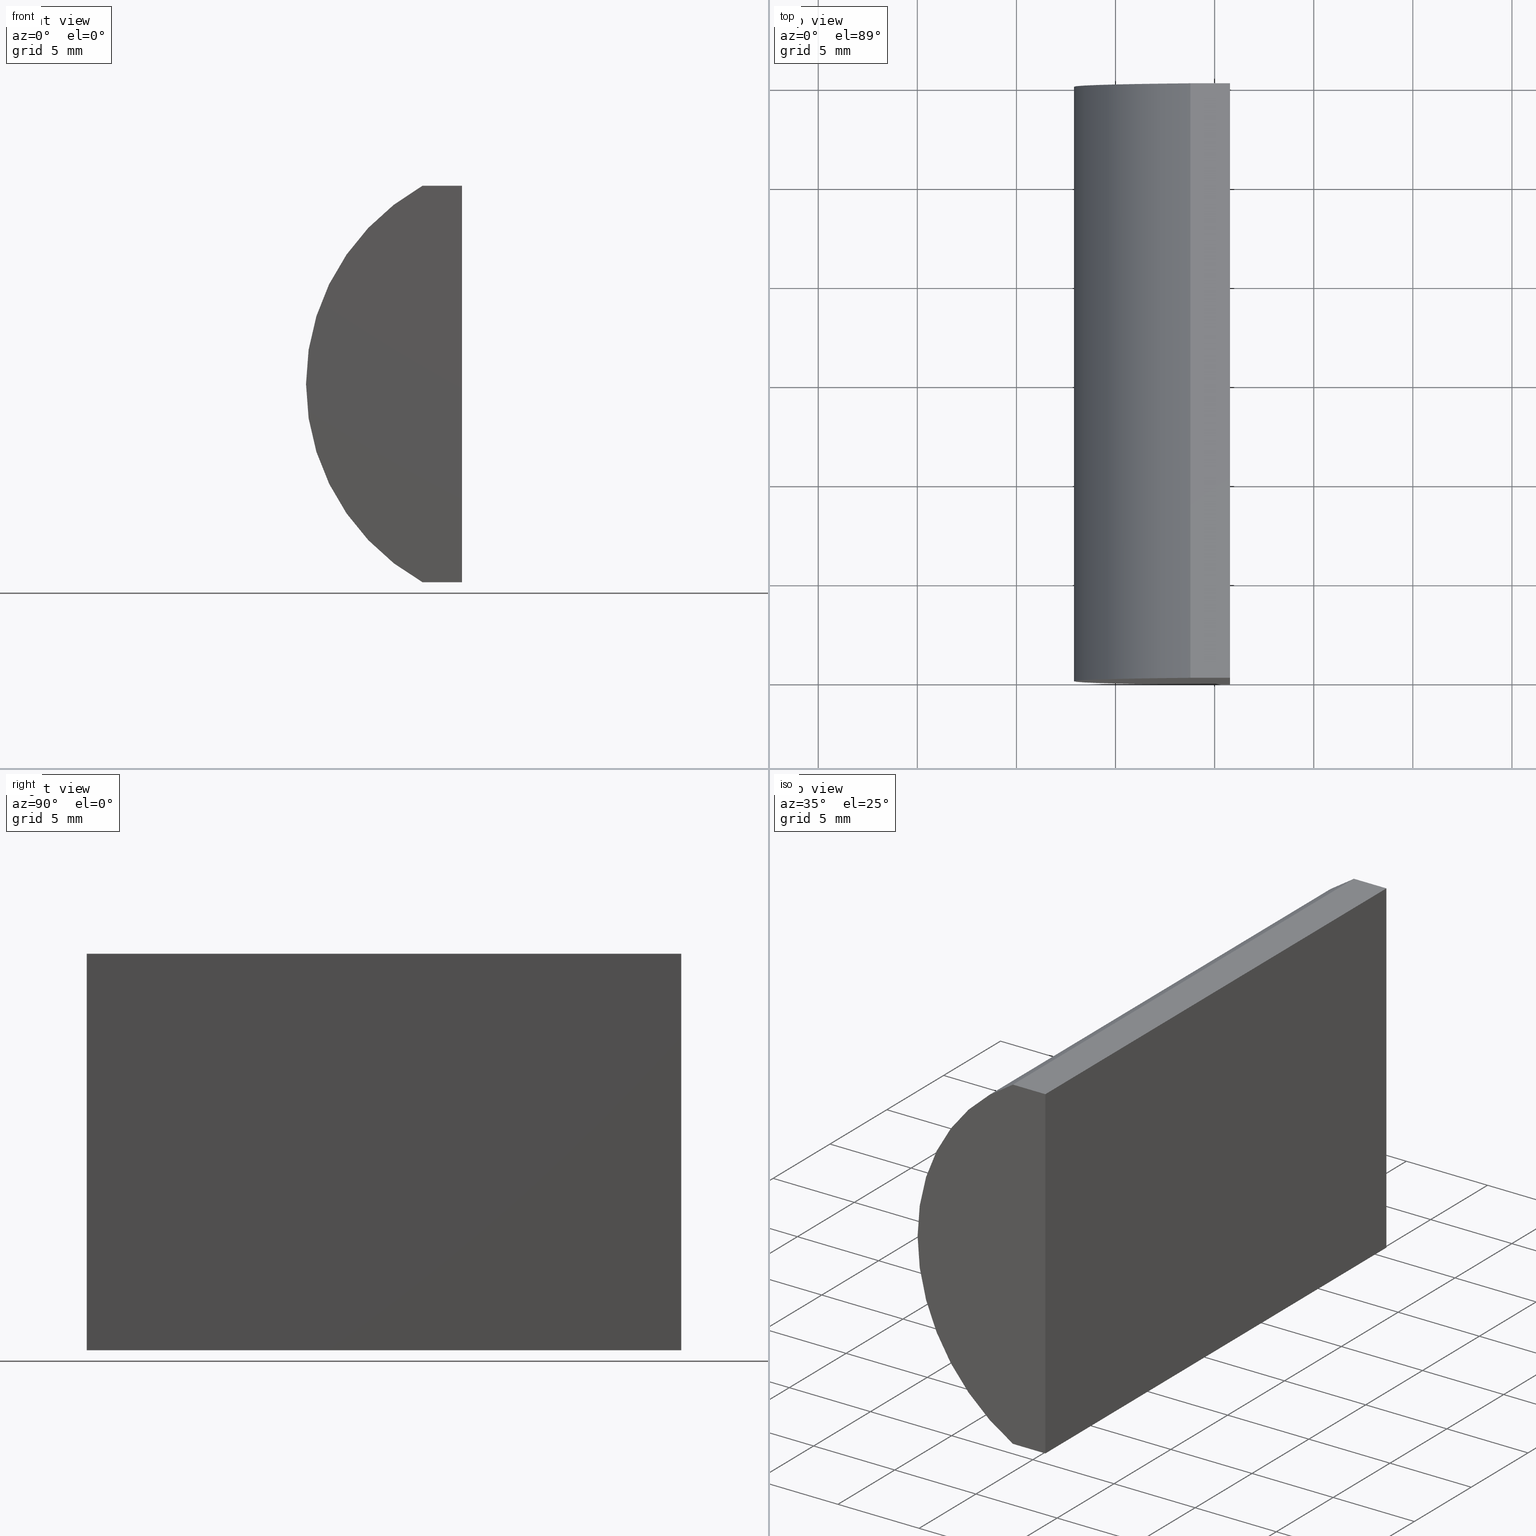
[diagram: canonical four-view strip — front | top / right | iso, engineering-drawing reading convention]
A machine part, canonical four-view strip (front | top / right | iso — engineering-drawing reading convention). The complete STEP part file that produces these views, byte-faithful:
ISO-10303-21;
HEADER;
FILE_DESCRIPTION (( 'STEP AP214' ),
    '1' );
FILE_NAME ('155294.STEP',
    '2019-06-26T06:16:35',
    ( 'user' ),
    ( '΢���й�' ),
    'SwSTEP 2.0',
    'SolidWorks 2016',
    '' );
FILE_SCHEMA (( 'AUTOMOTIVE_DESIGN' ));
ENDSEC;

DATA;
#1 = EDGE_CURVE ( 'NONE', #183, #32, #134, .T. ) ;
#2 = PLANE ( 'NONE',  #62 ) ;
#3 = ORIENTED_EDGE ( 'NONE', *, *, #173, .F. ) ;
#4 = EDGE_CURVE ( 'NONE', #175, #183, #56, .T. ) ;
#5 = VECTOR ( 'NONE', #172, 1000.000000000000000 ) ;
#6 = CARTESIAN_POINT ( 'NONE',  ( -1.221757203477694200, 0.0000000000000000000, 10.00000000000000000 ) ) ;
#7 = APPLICATION_CONTEXT ( 'automotive_design' ) ;
#8 =( NAMED_UNIT ( * ) SI_UNIT ( $, .STERADIAN. ) SOLID_ANGLE_UNIT ( ) );
#9 = FILL_AREA_STYLE ('',( #81 ) ) ;
#10 = ORIENTED_EDGE ( 'NONE', *, *, #80, .F. ) ;
#11 = ORIENTED_EDGE ( 'NONE', *, *, #1, .F. ) ;
#12 = ORIENTED_EDGE ( 'NONE', *, *, #4, .F. ) ;
#13 = APPLICATION_CONTEXT ( 'automotive_design' ) ;
#14 = EDGE_LOOP ( 'NONE', ( #77, #166, #65, #201 ) ) ;
#15 = ORIENTED_EDGE ( 'NONE', *, *, #1, .T. ) ;
#16 = FACE_OUTER_BOUND ( 'NONE', #184, .T. ) ;
#17 = ADVANCED_FACE ( 'NONE', ( #16 ), #193, .F. ) ;
#18 = DIRECTION ( 'NONE',  ( 0.0000000000000000000, 1.000000000000000000, 0.0000000000000000000 ) ) ;
#19 = COLOUR_RGB ( '',1.000000000000000000, 1.000000000000000000, 1.000000000000000000 ) ;
#20 = UNCERTAINTY_MEASURE_WITH_UNIT (LENGTH_MEASURE( 1.000000000000000100E-005 ), #83, 'distance_accuracy_value', 'NONE');
#21 =( GEOMETRIC_REPRESENTATION_CONTEXT ( 3 ) GLOBAL_UNCERTAINTY_ASSIGNED_CONTEXT ( ( #20 ) ) GLOBAL_UNIT_ASSIGNED_CONTEXT ( ( #83, #132, #69 ) ) REPRESENTATION_CONTEXT ( 'NONE', 'WORKASPACE' ) );
#22 = CARTESIAN_POINT ( 'NONE',  ( 0.7752043348512593900, 0.0000000000000000000, -10.00000000000000400 ) ) ;
#23 = CARTESIAN_POINT ( 'NONE',  ( -1.221757203477694200, 30.00000000000000000, 10.00000000000000000 ) ) ;
#24 = ORIENTED_EDGE ( 'NONE', *, *, #80, .T. ) ;
#25 = ORIENTED_EDGE ( 'NONE', *, *, #173, .T. ) ;
#26 = LINE ( 'NONE', #59, #34 ) ;
#27 = PLANE ( 'NONE',  #100 ) ;
#28 = DIRECTION ( 'NONE',  ( 0.0000000000000000000, 0.0000000000000000000, -1.000000000000000000 ) ) ;
#29 = EDGE_LOOP ( 'NONE', ( #73, #11, #12, #131 ) ) ;
#30 = DIRECTION ( 'NONE',  ( 0.0000000000000000000, 0.0000000000000000000, 1.000000000000000000 ) ) ;
#31 = PRODUCT_RELATED_PRODUCT_CATEGORY ( 'part', '', ( #186 ) ) ;
#32 = VERTEX_POINT ( 'NONE', #6 ) ;
#33 = CLOSED_SHELL ( 'NONE', ( #102, #128, #60, #17, #107, #192 ) ) ;
#34 = VECTOR ( 'NONE', #111, 1000.000000000000000 ) ;
#35 = EDGE_CURVE ( 'NONE', #32, #149, #104, .T. ) ;
#36 = MANIFOLD_SOLID_BREP ( '͹̨-����1', #33 ) ;
#37 = DIRECTION ( 'NONE',  ( 0.0000000000000000000, 1.000000000000000000, 0.0000000000000000000 ) ) ;
#38 = SURFACE_STYLE_USAGE ( .BOTH. , #180 ) ;
#39 = ORIENTED_EDGE ( 'NONE', *, *, #74, .T. ) ;
#40 = VERTEX_POINT ( 'NONE', #22 ) ;
#41 = DIRECTION ( 'NONE',  ( -0.0000000000000000000, -1.000000000000000000, -0.0000000000000000000 ) ) ;
#42 = CARTESIAN_POINT ( 'NONE',  ( -1.221757203477650000, 30.00000000000000000, -10.00000000000000000 ) ) ;
#43 = PRODUCT_DEFINITION_SHAPE ( 'NONE', 'NONE',  #135 ) ;
#44 = MECHANICAL_DESIGN_GEOMETRIC_PRESENTATION_REPRESENTATION (  '', ( #174 ), #159 ) ;
#45 = ORIENTED_EDGE ( 'NONE', *, *, #187, .T. ) ;
#46 = DIRECTION ( 'NONE',  ( 0.0000000000000000000, 1.000000000000000000, 0.0000000000000000000 ) ) ;
#47 = CARTESIAN_POINT ( 'NONE',  ( 0.7752043348512593900, 0.0000000000000000000, -10.00000000000000400 ) ) ;
#48 = EDGE_CURVE ( 'NONE', #175, #119, #88, .T. ) ;
#49 = CARTESIAN_POINT ( 'NONE',  ( -1.221757203477650000, 30.00000000000000000, -10.00000000000000000 ) ) ;
#50 = CYLINDRICAL_SURFACE ( 'NONE', #114, 11.45000000000001200 ) ;
#51 = ORIENTED_EDGE ( 'NONE', *, *, #74, .F. ) ;
#52 = AXIS2_PLACEMENT_3D ( 'NONE', #105, #110, #90 ) ;
#53 = LINE ( 'NONE', #169, #160 ) ;
#54 = VECTOR ( 'NONE', #93, 1000.000000000000000 ) ;
#55 = STYLED_ITEM ( 'NONE', ( #130 ), #121 ) ;
#56 = CIRCLE ( 'NONE', #97, 11.45000000000001200 ) ;
#57 = CARTESIAN_POINT ( 'NONE',  ( 0.7752043348512593900, 30.00000000000000000, -10.00000000000000400 ) ) ;
#58 = PRODUCT_DEFINITION_FORMATION_WITH_SPECIFIED_SOURCE ( '�κ�', '', #186, .NOT_KNOWN. ) ;
#59 = CARTESIAN_POINT ( 'NONE',  ( -1.221757203477694200, 30.00000000000000000, 10.00000000000000000 ) ) ;
#60 = ADVANCED_FACE ( 'NONE', ( #117 ), #27, .F. ) ;
#61 = CARTESIAN_POINT ( 'NONE',  ( 0.7752043348512655000, 30.00000000000000000, 10.00000000000000000 ) ) ;
#62 = AXIS2_PLACEMENT_3D ( 'NONE', #158, #28, #154 ) ;
#63 = ORIENTED_EDGE ( 'NONE', *, *, #202, .F. ) ;
#64 = DIRECTION ( 'NONE',  ( 3.035766082959411900E-016, 0.0000000000000000000, 1.000000000000000000 ) ) ;
#65 = ORIENTED_EDGE ( 'NONE', *, *, #187, .F. ) ;
#66 = LINE ( 'NONE', #57, #142 ) ;
#67 = MECHANICAL_DESIGN_GEOMETRIC_PRESENTATION_REPRESENTATION (  '', ( #55 ), #182 ) ;
#68 = VERTEX_POINT ( 'NONE', #124 ) ;
#69 =( NAMED_UNIT ( * ) SI_UNIT ( $, .STERADIAN. ) SOLID_ANGLE_UNIT ( ) );
#70 = ORIENTED_EDGE ( 'NONE', *, *, #113, .T. ) ;
#71 = CARTESIAN_POINT ( 'NONE',  ( 0.7752043348512593900, 30.00000000000000000, -10.00000000000000400 ) ) ;
#72 = CARTESIAN_POINT ( 'NONE',  ( 4.355204334851265500, 30.00000000000000000, 4.286263797015675000E-017 ) ) ;
#73 = ORIENTED_EDGE ( 'NONE', *, *, #152, .T. ) ;
#74 = EDGE_CURVE ( 'NONE', #183, #68, #26, .T. ) ;
#75 = DIRECTION ( 'NONE',  ( -0.0000000000000000000, -1.000000000000000000, -0.0000000000000000000 ) ) ;
#76 = EDGE_LOOP ( 'NONE', ( #45, #153, #3, #24 ) ) ;
#77 = ORIENTED_EDGE ( 'NONE', *, *, #152, .F. ) ;
#78 =( NAMED_UNIT ( * ) PLANE_ANGLE_UNIT ( ) SI_UNIT ( $, .RADIAN. ) );
#79 = VECTOR ( 'NONE', #96, 1000.000000000000000 ) ;
#80 = EDGE_CURVE ( 'NONE', #68, #149, #162, .T. ) ;
#81 = FILL_AREA_STYLE_COLOUR ( '', #19 ) ;
#82 = CARTESIAN_POINT ( 'NONE',  ( 0.7752043348512593900, 30.00000000000000000, -10.00000000000000400 ) ) ;
#83 =( LENGTH_UNIT ( ) NAMED_UNIT ( * ) SI_UNIT ( .MILLI., .METRE. ) );
#84 =( NAMED_UNIT ( * ) SI_UNIT ( $, .STERADIAN. ) SOLID_ANGLE_UNIT ( ) );
#85 = AXIS2_PLACEMENT_3D ( 'NONE', #98, #18, #178 ) ;
#86 = UNCERTAINTY_MEASURE_WITH_UNIT (LENGTH_MEASURE( 1.000000000000000100E-005 ), #161, 'distance_accuracy_value', 'NONE');
#87 = FACE_OUTER_BOUND ( 'NONE', #127, .T. ) ;
#88 = LINE ( 'NONE', #49, #122 ) ;
#89 = CARTESIAN_POINT ( 'NONE',  ( -1.221757203477694200, 30.00000000000000000, 10.00000000000000000 ) ) ;
#90 = DIRECTION ( 'NONE',  ( 0.0000000000000000000, -0.0000000000000000000, 1.000000000000000000 ) ) ;
#91 = CARTESIAN_POINT ( 'NONE',  ( -1.221757203477694200, 0.0000000000000000000, 10.00000000000000000 ) ) ;
#92 = PRESENTATION_LAYER_ASSIGNMENT (  '', '', ( #174 ) ) ;
#93 = DIRECTION ( 'NONE',  ( -0.0000000000000000000, -1.000000000000000000, -0.0000000000000000000 ) ) ;
#94 = DIRECTION ( 'NONE',  ( -0.0000000000000000000, -1.000000000000000000, -0.0000000000000000000 ) ) ;
#95 = DIRECTION ( 'NONE',  ( 0.0000000000000000000, 0.0000000000000000000, 1.000000000000000000 ) ) ;
#96 = DIRECTION ( 'NONE',  ( -1.000000000000000000, -0.0000000000000000000, 1.737362931314593500E-015 ) ) ;
#97 = AXIS2_PLACEMENT_3D ( 'NONE', #143, #37, #108 ) ;
#98 = CARTESIAN_POINT ( 'NONE',  ( 4.355204334851265500, 30.00000000000000000, 4.286263797015675000E-017 ) ) ;
#99 = UNCERTAINTY_MEASURE_WITH_UNIT (LENGTH_MEASURE( 1.000000000000000100E-005 ), #165, 'distance_accuracy_value', 'NONE');
#100 = AXIS2_PLACEMENT_3D ( 'NONE', #150, #147, #64 ) ;
#101 = FACE_OUTER_BOUND ( 'NONE', #29, .T. ) ;
#102 = ADVANCED_FACE ( 'NONE', ( #101 ), #50, .T. ) ;
#103 = SURFACE_STYLE_FILL_AREA ( #9 ) ;
#104 = LINE ( 'NONE', #91, #179 ) ;
#105 = CARTESIAN_POINT ( 'NONE',  ( 4.355204334851265500, 0.0000000000000000000, 4.286263797015675000E-017 ) ) ;
#106 = CARTESIAN_POINT ( 'NONE',  ( 0.7752043348512655000, 0.0000000000000000000, 10.00000000000000000 ) ) ;
#107 = ADVANCED_FACE ( 'NONE', ( #87 ), #203, .T. ) ;
#108 = DIRECTION ( 'NONE',  ( 0.0000000000000000000, 0.0000000000000000000, 1.000000000000000000 ) ) ;
#109 = AXIS2_PLACEMENT_3D ( 'NONE', #198, #30, #200 ) ;
#110 = DIRECTION ( 'NONE',  ( 0.0000000000000000000, 1.000000000000000000, 0.0000000000000000000 ) ) ;
#111 = DIRECTION ( 'NONE',  ( 1.000000000000000000, 0.0000000000000000000, 0.0000000000000000000 ) ) ;
#112 = VECTOR ( 'NONE', #138, 1000.000000000000000 ) ;
#113 = EDGE_CURVE ( 'NONE', #125, #40, #66, .T. ) ;
#114 = AXIS2_PLACEMENT_3D ( 'NONE', #72, #94, #197 ) ;
#115 = AXIS2_PLACEMENT_3D ( 'NONE', #129, #137, #191 ) ;
#116 = ORIENTED_EDGE ( 'NONE', *, *, #4, .T. ) ;
#117 = FACE_OUTER_BOUND ( 'NONE', #76, .T. ) ;
#118 = LINE ( 'NONE', #47, #176 ) ;
#119 = VERTEX_POINT ( 'NONE', #164 ) ;
#120 = PRODUCT_CONTEXT ( 'NONE', #13, 'mechanical' ) ;
#121 = ADVANCED_BREP_SHAPE_REPRESENTATION ( '155294', ( #36, #109 ), #21 ) ;
#122 = VECTOR ( 'NONE', #41, 1000.000000000000000 ) ;
#123 = FACE_OUTER_BOUND ( 'NONE', #14, .T. ) ;
#124 = CARTESIAN_POINT ( 'NONE',  ( 0.7752043348512655000, 30.00000000000000000, 10.00000000000000000 ) ) ;
#125 = VERTEX_POINT ( 'NONE', #71 ) ;
#126 = SURFACE_STYLE_USAGE ( .BOTH. , #163 ) ;
#127 = EDGE_LOOP ( 'NONE', ( #116, #39, #25, #188 ) ) ;
#128 = ADVANCED_FACE ( 'NONE', ( #190 ), #2, .F. ) ;
#129 = CARTESIAN_POINT ( 'NONE',  ( -1.221757203477650000, 30.00000000000000000, -10.00000000000000000 ) ) ;
#130 = PRESENTATION_STYLE_ASSIGNMENT (( #38 ) ) ;
#131 = ORIENTED_EDGE ( 'NONE', *, *, #48, .T. ) ;
#132 =( NAMED_UNIT ( * ) PLANE_ANGLE_UNIT ( ) SI_UNIT ( $, .RADIAN. ) );
#133 = SHAPE_DEFINITION_REPRESENTATION ( #43, #121 ) ;
#134 = LINE ( 'NONE', #89, #5 ) ;
#135 = PRODUCT_DEFINITION ( 'δ֪', '', #58, #171 ) ;
#136 = FILL_AREA_STYLE ('',( #199 ) ) ;
#137 = DIRECTION ( 'NONE',  ( 1.737362931314593500E-015, -0.0000000000000000000, 1.000000000000000000 ) ) ;
#138 = DIRECTION ( 'NONE',  ( -3.035766082959411900E-016, -0.0000000000000000000, -1.000000000000000000 ) ) ;
#139 = AXIS2_PLACEMENT_3D ( 'NONE', #167, #46, #95 ) ;
#140 = APPLICATION_PROTOCOL_DEFINITION ( 'draft international standard', 'automotive_design', 1998, #13 ) ;
#141 = COLOUR_RGB ( '',1.000000000000000000, 1.000000000000000000, 1.000000000000000000 ) ;
#142 = VECTOR ( 'NONE', #75, 1000.000000000000000 ) ;
#143 = CARTESIAN_POINT ( 'NONE',  ( 4.355204334851265500, 30.00000000000000000, 4.286263797015675000E-017 ) ) ;
#144 =( NAMED_UNIT ( * ) PLANE_ANGLE_UNIT ( ) SI_UNIT ( $, .RADIAN. ) );
#145 = ORIENTED_EDGE ( 'NONE', *, *, #181, .T. ) ;
#146 = APPLICATION_PROTOCOL_DEFINITION ( 'draft international standard', 'automotive_design', 1998, #7 ) ;
#147 = DIRECTION ( 'NONE',  ( -1.000000000000000000, 0.0000000000000000000, 3.035766082959411900E-016 ) ) ;
#148 = PLANE ( 'NONE',  #52 ) ;
#149 = VERTEX_POINT ( 'NONE', #106 ) ;
#150 = CARTESIAN_POINT ( 'NONE',  ( 0.7752043348512593900, 30.00000000000000000, -10.00000000000000400 ) ) ;
#151 = CIRCLE ( 'NONE', #139, 11.45000000000001200 ) ;
#152 = EDGE_CURVE ( 'NONE', #119, #32, #151, .T. ) ;
#153 = ORIENTED_EDGE ( 'NONE', *, *, #113, .F. ) ;
#154 = DIRECTION ( 'NONE',  ( -1.000000000000000000, 0.0000000000000000000, -0.0000000000000000000 ) ) ;
#155 = LINE ( 'NONE', #196, #79 ) ;
#156 = LINE ( 'NONE', #82, #112 ) ;
#157 = DIRECTION ( 'NONE',  ( 1.000000000000000000, 0.0000000000000000000, 0.0000000000000000000 ) ) ;
#158 = CARTESIAN_POINT ( 'NONE',  ( -1.221757203477694200, 30.00000000000000000, 10.00000000000000000 ) ) ;
#159 =( GEOMETRIC_REPRESENTATION_CONTEXT ( 3 ) GLOBAL_UNCERTAINTY_ASSIGNED_CONTEXT ( ( #86 ) ) GLOBAL_UNIT_ASSIGNED_CONTEXT ( ( #161, #78, #84 ) ) REPRESENTATION_CONTEXT ( 'NONE', 'WORKASPACE' ) );
#160 = VECTOR ( 'NONE', #170, 1000.000000000000000 ) ;
#161 =( LENGTH_UNIT ( ) NAMED_UNIT ( * ) SI_UNIT ( .MILLI., .METRE. ) );
#162 = LINE ( 'NONE', #61, #54 ) ;
#163 = SURFACE_SIDE_STYLE ('',( #103 ) ) ;
#164 = CARTESIAN_POINT ( 'NONE',  ( -1.221757203477650000, 0.0000000000000000000, -10.00000000000000000 ) ) ;
#165 =( LENGTH_UNIT ( ) NAMED_UNIT ( * ) SI_UNIT ( .MILLI., .METRE. ) );
#166 = ORIENTED_EDGE ( 'NONE', *, *, #181, .F. ) ;
#167 = CARTESIAN_POINT ( 'NONE',  ( 4.355204334851265500, 0.0000000000000000000, 4.286263797015675000E-017 ) ) ;
#168 = PRESENTATION_LAYER_ASSIGNMENT (  '', '', ( #55 ) ) ;
#169 = CARTESIAN_POINT ( 'NONE',  ( -1.221757203477650000, 30.00000000000000000, -10.00000000000000000 ) ) ;
#170 = DIRECTION ( 'NONE',  ( -1.000000000000000000, -0.0000000000000000000, 1.737362931314593500E-015 ) ) ;
#171 = PRODUCT_DEFINITION_CONTEXT ( 'detailed design', #7, 'design' ) ;
#172 = DIRECTION ( 'NONE',  ( -0.0000000000000000000, -1.000000000000000000, -0.0000000000000000000 ) ) ;
#173 = EDGE_CURVE ( 'NONE', #68, #125, #156, .T. ) ;
#174 = STYLED_ITEM ( 'NONE', ( #185 ), #36 ) ;
#175 = VERTEX_POINT ( 'NONE', #42 ) ;
#176 = VECTOR ( 'NONE', #204, 1000.000000000000000 ) ;
#177 = SURFACE_STYLE_FILL_AREA ( #136 ) ;
#178 = DIRECTION ( 'NONE',  ( 0.0000000000000000000, -0.0000000000000000000, 1.000000000000000000 ) ) ;
#179 = VECTOR ( 'NONE', #157, 1000.000000000000000 ) ;
#180 = SURFACE_SIDE_STYLE ('',( #177 ) ) ;
#181 = EDGE_CURVE ( 'NONE', #40, #119, #155, .T. ) ;
#182 =( GEOMETRIC_REPRESENTATION_CONTEXT ( 3 ) GLOBAL_UNCERTAINTY_ASSIGNED_CONTEXT ( ( #99 ) ) GLOBAL_UNIT_ASSIGNED_CONTEXT ( ( #165, #144, #8 ) ) REPRESENTATION_CONTEXT ( 'NONE', 'WORKASPACE' ) );
#183 = VERTEX_POINT ( 'NONE', #23 ) ;
#184 = EDGE_LOOP ( 'NONE', ( #145, #189, #63, #70 ) ) ;
#185 = PRESENTATION_STYLE_ASSIGNMENT (( #126 ) ) ;
#186 = PRODUCT ( '155294', '155294', '', ( #120 ) ) ;
#187 = EDGE_CURVE ( 'NONE', #149, #40, #118, .T. ) ;
#188 = ORIENTED_EDGE ( 'NONE', *, *, #202, .T. ) ;
#189 = ORIENTED_EDGE ( 'NONE', *, *, #48, .F. ) ;
#190 = FACE_OUTER_BOUND ( 'NONE', #195, .T. ) ;
#191 = DIRECTION ( 'NONE',  ( 1.000000000000000000, 0.0000000000000000000, -1.737362931314593500E-015 ) ) ;
#192 = ADVANCED_FACE ( 'NONE', ( #123 ), #148, .F. ) ;
#193 = PLANE ( 'NONE',  #115 ) ;
#194 = ORIENTED_EDGE ( 'NONE', *, *, #35, .T. ) ;
#195 = EDGE_LOOP ( 'NONE', ( #194, #10, #51, #15 ) ) ;
#196 = CARTESIAN_POINT ( 'NONE',  ( -1.221757203477650000, 0.0000000000000000000, -10.00000000000000000 ) ) ;
#197 = DIRECTION ( 'NONE',  ( 0.0000000000000000000, 0.0000000000000000000, -1.000000000000000000 ) ) ;
#198 = CARTESIAN_POINT ( 'NONE',  ( 0.0000000000000000000, 0.0000000000000000000, 0.0000000000000000000 ) ) ;
#199 = FILL_AREA_STYLE_COLOUR ( '', #141 ) ;
#200 = DIRECTION ( 'NONE',  ( 1.000000000000000000, 0.0000000000000000000, 0.0000000000000000000 ) ) ;
#201 = ORIENTED_EDGE ( 'NONE', *, *, #35, .F. ) ;
#202 = EDGE_CURVE ( 'NONE', #125, #175, #53, .T. ) ;
#203 = PLANE ( 'NONE',  #85 ) ;
#204 = DIRECTION ( 'NONE',  ( -3.035766082959411900E-016, -0.0000000000000000000, -1.000000000000000000 ) ) ;
ENDSEC;
END-ISO-10303-21;
